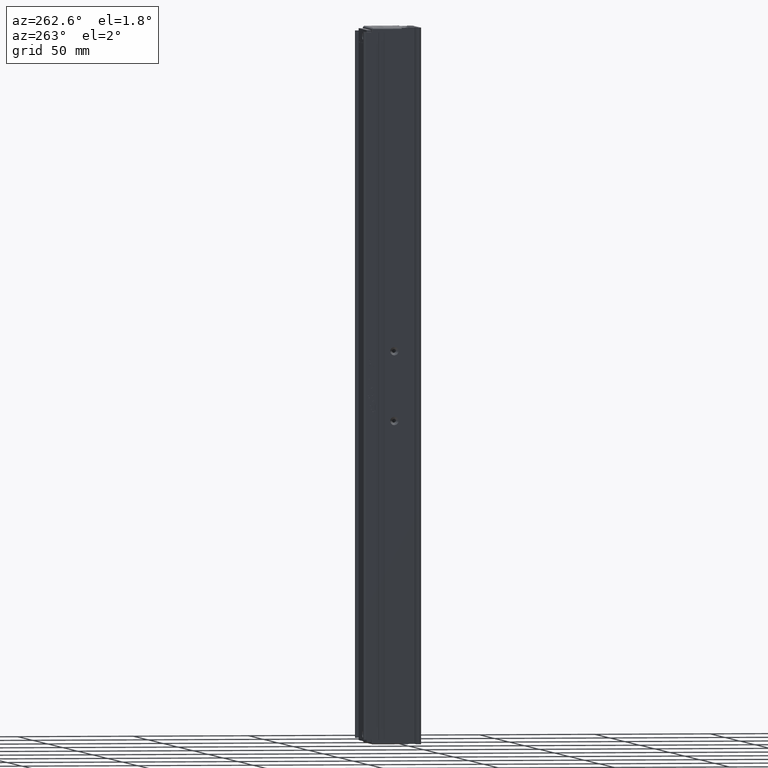
[diagram: clean part render]
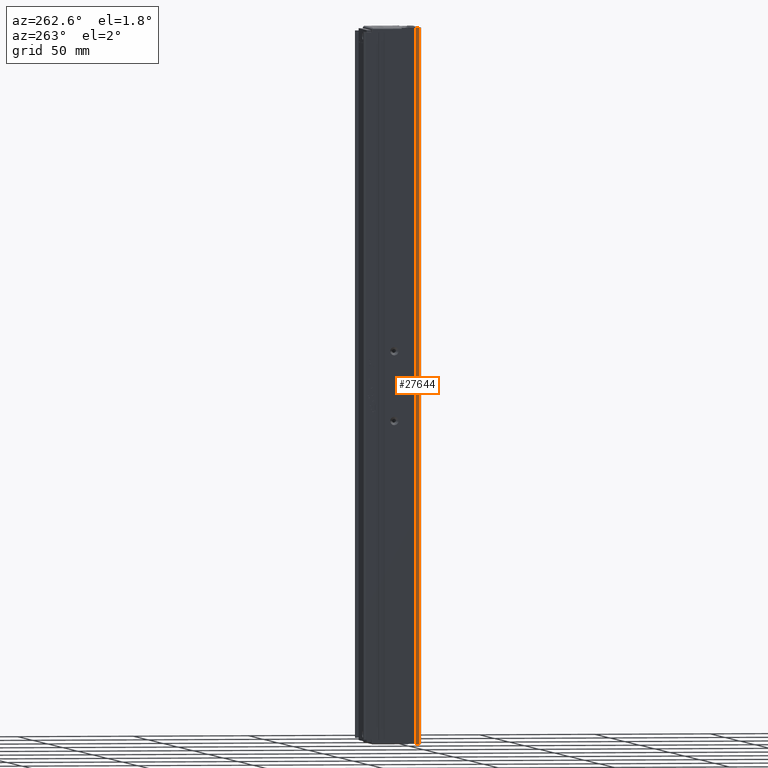
[diagram: same view with one face highlighted and labeled with its STEP entity id]
A machine part, auxiliary view. The second image highlights one B-rep face of the part: STEP entity #27644.
In plain terms, the highlighted planar face has unit normal (-1, 0, 0).
Its self-contained STEP definition (entity closure, byte-faithful):
#145 = CARTESIAN_POINT ( 'NONE',  ( 25.92537974683541800, 7.083797468354437600, 38.99999999999999300 ) ) ;
#798 = CARTESIAN_POINT ( 'NONE',  ( 25.92537974683541800, 7.083797468354437600, -269.0000000000000000 ) ) ;
#1464 = CARTESIAN_POINT ( 'NONE',  ( 25.92537974683541800, 12.99594479660387200, 38.99999999999999300 ) ) ;
#1655 = ORIENTED_EDGE ( 'NONE', *, *, #26116, .T. ) ;
#3276 = CARTESIAN_POINT ( 'NONE',  ( 25.92537974683542100, 11.69594479660387000, -269.0000000000000000 ) ) ;
#4937 = DIRECTION ( 'NONE',  ( 0.0000000000000000000, 1.000000000000000000, -0.0000000000000000000 ) ) ;
#6299 = AXIS2_PLACEMENT_3D ( 'NONE', #15666, #48789, #20463 ) ;
#6346 = CARTESIAN_POINT ( 'NONE',  ( 25.92537974683542100, 11.69594479660387000, 38.99999999999999300 ) ) ;
#7431 = VECTOR ( 'NONE', #29036, 1000.000000000000000 ) ;
#15176 = LINE ( 'NONE', #145, #26345 ) ;
#15666 = CARTESIAN_POINT ( 'NONE',  ( 25.92537974683541800, 7.083797468354437600, 38.99999999999999300 ) ) ;
#17664 = EDGE_CURVE ( 'NONE', #30389, #22535, #15176, .T. ) ;
#19233 = VERTEX_POINT ( 'NONE', #3276 ) ;
#19519 = EDGE_LOOP ( 'NONE', ( #21469, #59223, #1655, #61214 ) ) ;
#20463 = DIRECTION ( 'NONE',  ( 0.0000000000000000000, 0.0000000000000000000, 1.000000000000000000 ) ) ;
#21469 = ORIENTED_EDGE ( 'NONE', *, *, #17664, .T. ) ;
#22535 = VERTEX_POINT ( 'NONE', #28964 ) ;
#23967 = EDGE_CURVE ( 'NONE', #22535, #47152, #50625, .T. ) ;
#25647 = VECTOR ( 'NONE', #53462, 1000.000000000000000 ) ;
#26116 = EDGE_CURVE ( 'NONE', #47152, #19233, #43657, .T. ) ;
#26345 = VECTOR ( 'NONE', #4937, 1000.000000000000000 ) ;
#27644 = ADVANCED_FACE ( 'NONE', ( #48173 ), #57862, .T. ) ;
#28964 = CARTESIAN_POINT ( 'NONE',  ( 25.92537974683541800, 12.99594479660387200, 38.99999999999999300 ) ) ;
#29036 = DIRECTION ( 'NONE',  ( -0.0000000000000000000, -1.000000000000000000, 0.0000000000000000000 ) ) ;
#30389 = VERTEX_POINT ( 'NONE', #6346 ) ;
#38035 = VECTOR ( 'NONE', #39405, 1000.000000000000000 ) ;
#38238 = LINE ( 'NONE', #48699, #25647 ) ;
#39405 = DIRECTION ( 'NONE',  ( -0.0000000000000000000, -0.0000000000000000000, -1.000000000000000000 ) ) ;
#42989 = CARTESIAN_POINT ( 'NONE',  ( 25.92537974683541800, 12.99594479660387200, -269.0000000000000000 ) ) ;
#43657 = LINE ( 'NONE', #798, #7431 ) ;
#47152 = VERTEX_POINT ( 'NONE', #42989 ) ;
#48173 = FACE_OUTER_BOUND ( 'NONE', #19519, .T. ) ;
#48699 = CARTESIAN_POINT ( 'NONE',  ( 25.92537974683542100, 11.69594479660387000, 38.99999999999999300 ) ) ;
#48789 = DIRECTION ( 'NONE',  ( -1.000000000000000000, 0.0000000000000000000, 0.0000000000000000000 ) ) ;
#50625 = LINE ( 'NONE', #1464, #38035 ) ;
#53462 = DIRECTION ( 'NONE',  ( -0.0000000000000000000, -0.0000000000000000000, -1.000000000000000000 ) ) ;
#56710 = EDGE_CURVE ( 'NONE', #30389, #19233, #38238, .T. ) ;
#57862 = PLANE ( 'NONE',  #6299 ) ;
#59223 = ORIENTED_EDGE ( 'NONE', *, *, #23967, .T. ) ;
#61214 = ORIENTED_EDGE ( 'NONE', *, *, #56710, .F. ) ;